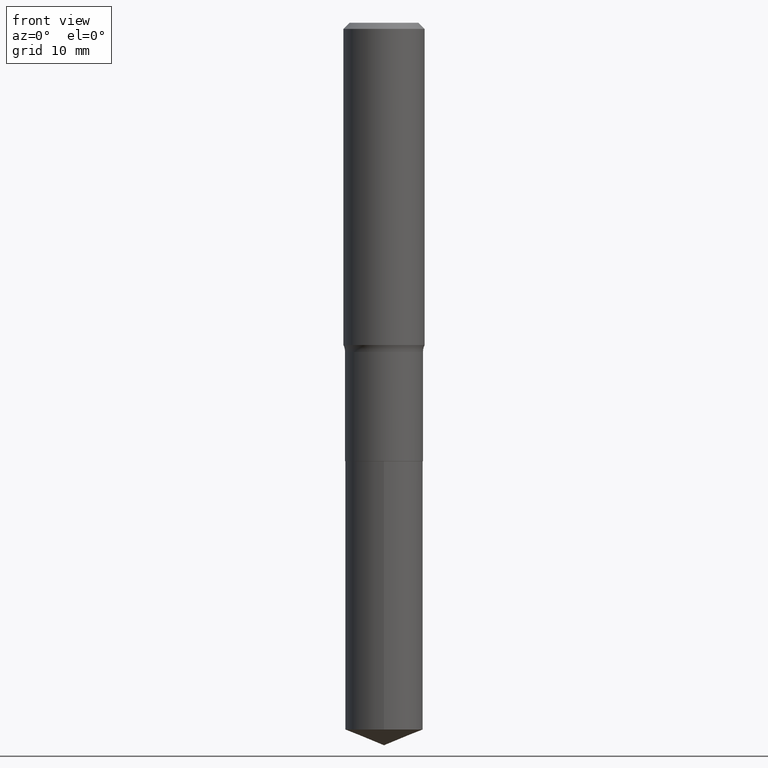
[diagram: clean part render]
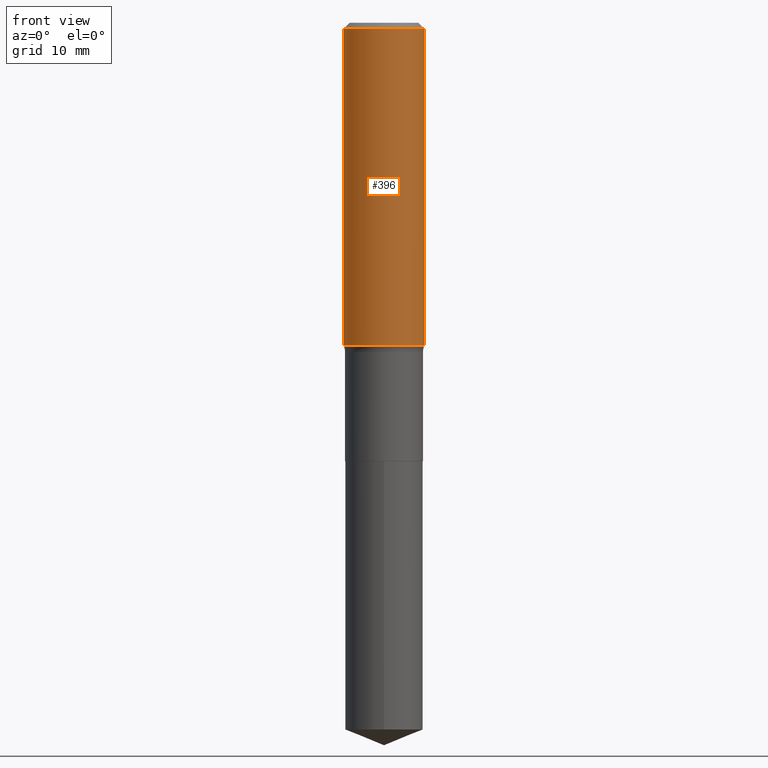
[diagram: same view with one face highlighted and labeled with its STEP entity id]
A machine part, front view. The second image highlights one B-rep face of the part: STEP entity #396.
In plain terms, the highlighted cylindrical surface (partial cylindrical patch) has radius 5 mm, axis along (-0, 0, 1).
Its self-contained STEP definition (entity closure, byte-faithful):
#13 = VERTEX_POINT ( 'NONE', #84 ) ;
#30 = CARTESIAN_POINT ( 'NONE',  ( 3.821528097541712528E-29, -5.456129313399840518E-15, -1.562697544076708356 ) ) ;
#31 = EDGE_CURVE ( 'NONE', #13, #398, #94, .T. ) ;
#34 = EDGE_LOOP ( 'NONE', ( #448, #286, #139, #397 ) ) ;
#44 = VECTOR ( 'NONE', #102, 39.37007874015748143 ) ;
#66 = CARTESIAN_POINT ( 'NONE',  ( 0.1968500000000001082, -1.374596203102542397E-15, 9.598753983154305062E-30 ) ) ;
#80 = DIRECTION ( 'NONE',  ( -2.445468806185136597E-29, 3.491481338843145583E-15, 1.000000000000000000 ) ) ;
#82 = AXIS2_PLACEMENT_3D ( 'NONE', #30, #236, #451 ) ;
#84 = CARTESIAN_POINT ( 'NONE',  ( -0.1968500000000000527, -1.380908638972507920E-15, -0.02952750000000019595 ) ) ;
#94 = CIRCLE ( 'NONE', #355, 0.1968500000000000527 ) ;
#102 = DIRECTION ( 'NONE',  ( -2.445468806185136877E-29, 3.491481338843145188E-15, 1.000000000000000000 ) ) ;
#131 = DIRECTION ( 'NONE',  ( -2.445468806185136597E-29, 3.491481338843145583E-15, 1.000000000000000000 ) ) ;
#139 = ORIENTED_EDGE ( 'NONE', *, *, #276, .T. ) ;
#149 = CARTESIAN_POINT ( 'NONE',  ( 0.1968500000000000527, -1.477690918335233688E-15, -0.02952750000000019595 ) ) ;
#153 = VERTEX_POINT ( 'NONE', #281 ) ;
#178 = VERTEX_POINT ( 'NONE', #296 ) ;
#190 = VECTOR ( 'NONE', #273, 39.37007874015748143 ) ;
#230 = CARTESIAN_POINT ( 'NONE',  ( 0.000000000000000000, 0.000000000000000000, 0.000000000000000000 ) ) ;
#236 = DIRECTION ( 'NONE',  ( -2.445468806185136597E-29, 3.491481338843145583E-15, 1.000000000000000000 ) ) ;
#241 = DIRECTION ( 'NONE',  ( 1.000000000000000000, -6.982962677686266711E-15, 0.000000000000000000 ) ) ;
#268 = EDGE_CURVE ( 'NONE', #153, #13, #440, .T. ) ;
#273 = DIRECTION ( 'NONE',  ( -2.445468806185136877E-29, 3.491481338843145188E-15, 1.000000000000000000 ) ) ;
#276 = EDGE_CURVE ( 'NONE', #178, #398, #407, .T. ) ;
#281 = CARTESIAN_POINT ( 'NONE',  ( -0.1968500000000001915, -4.057425938056081941E-15, -1.562697544076708356 ) ) ;
#286 = ORIENTED_EDGE ( 'NONE', *, *, #436, .T. ) ;
#296 = CARTESIAN_POINT ( 'NONE',  ( 0.1968500000000001915, -6.830725516502383704E-15, -1.562697544076708356 ) ) ;
#344 = DIRECTION ( 'NONE',  ( 1.000000000000000000, -6.982962677686266711E-15, 4.876176775795935793E-29 ) ) ;
#355 = AXIS2_PLACEMENT_3D ( 'NONE', #358, #131, #241 ) ;
#358 = CARTESIAN_POINT ( 'NONE',  ( 7.220858017463209485E-31, -1.030947152326916609E-16, -0.02952750000000019595 ) ) ;
#365 = CIRCLE ( 'NONE', #82, 0.1968500000000001915 ) ;
#367 = CARTESIAN_POINT ( 'NONE',  ( -0.1968500000000001082, 1.398703375343757985E-15, -9.682923725166787881E-30 ) ) ;
#384 = CYLINDRICAL_SURFACE ( 'NONE', #388, 0.1968500000000001082 ) ;
#388 = AXIS2_PLACEMENT_3D ( 'NONE', #230, #80, #344 ) ;
#396 = ADVANCED_FACE ( 'NONE', ( #486 ), #384, .T. ) ;
#397 = ORIENTED_EDGE ( 'NONE', *, *, #31, .F. ) ;
#398 = VERTEX_POINT ( 'NONE', #149 ) ;
#407 = LINE ( 'NONE', #66, #190 ) ;
#436 = EDGE_CURVE ( 'NONE', #153, #178, #365, .T. ) ;
#440 = LINE ( 'NONE', #367, #44 ) ;
#448 = ORIENTED_EDGE ( 'NONE', *, *, #268, .F. ) ;
#451 = DIRECTION ( 'NONE',  ( 1.000000000000000000, -6.982962677686266711E-15, 0.000000000000000000 ) ) ;
#486 = FACE_OUTER_BOUND ( 'NONE', #34, .T. ) ;